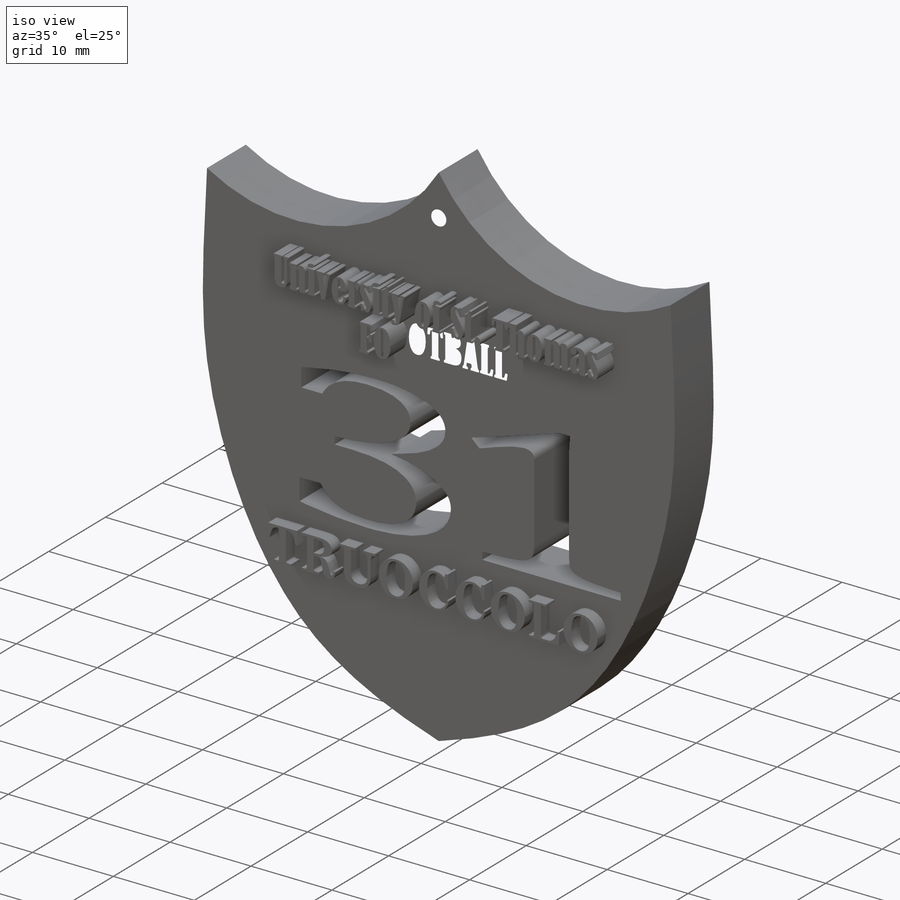
[diagram: iso view]
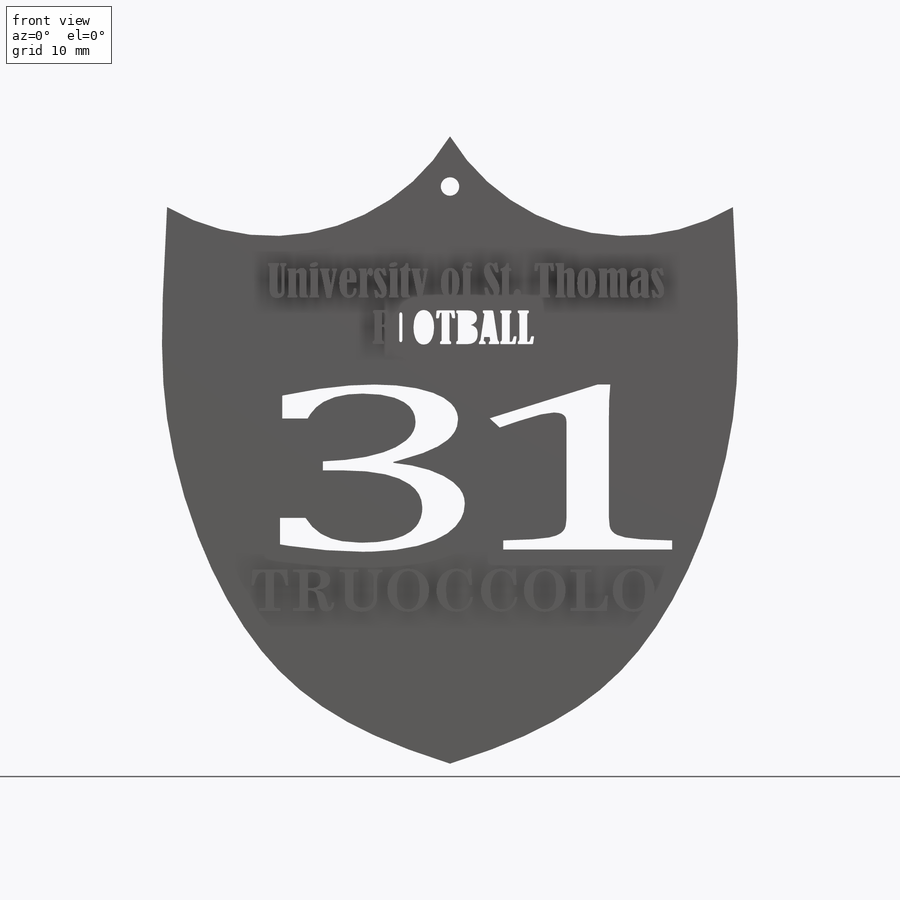
[diagram: front view]
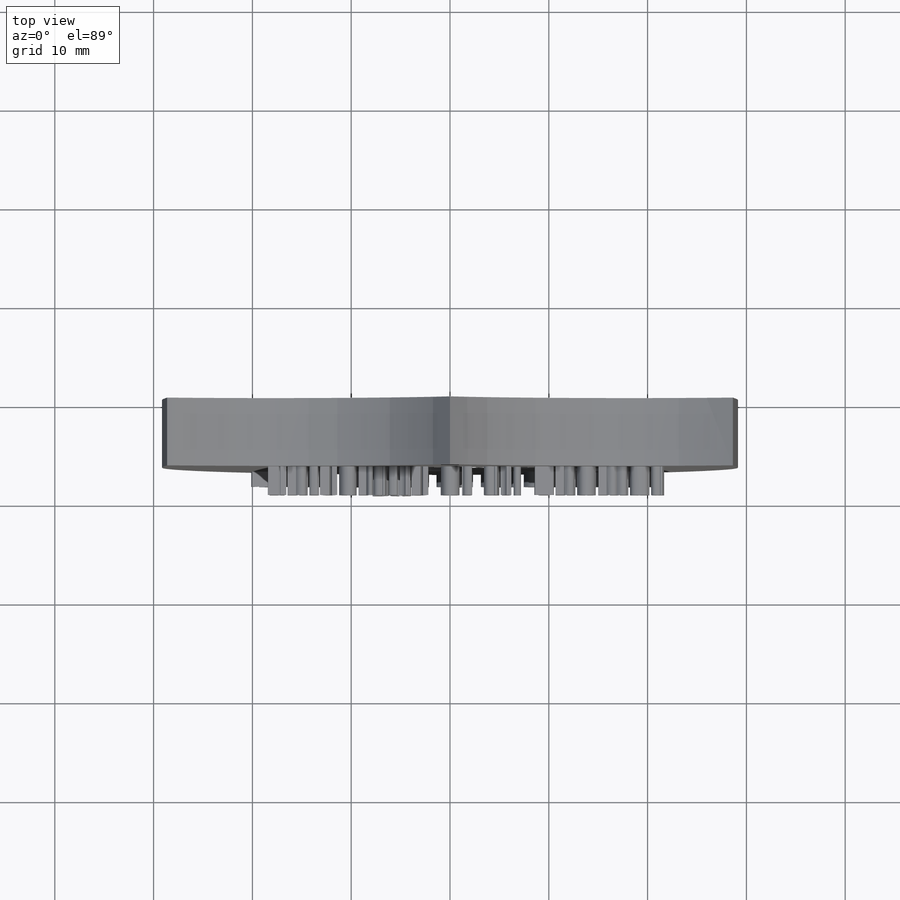
[diagram: top view]
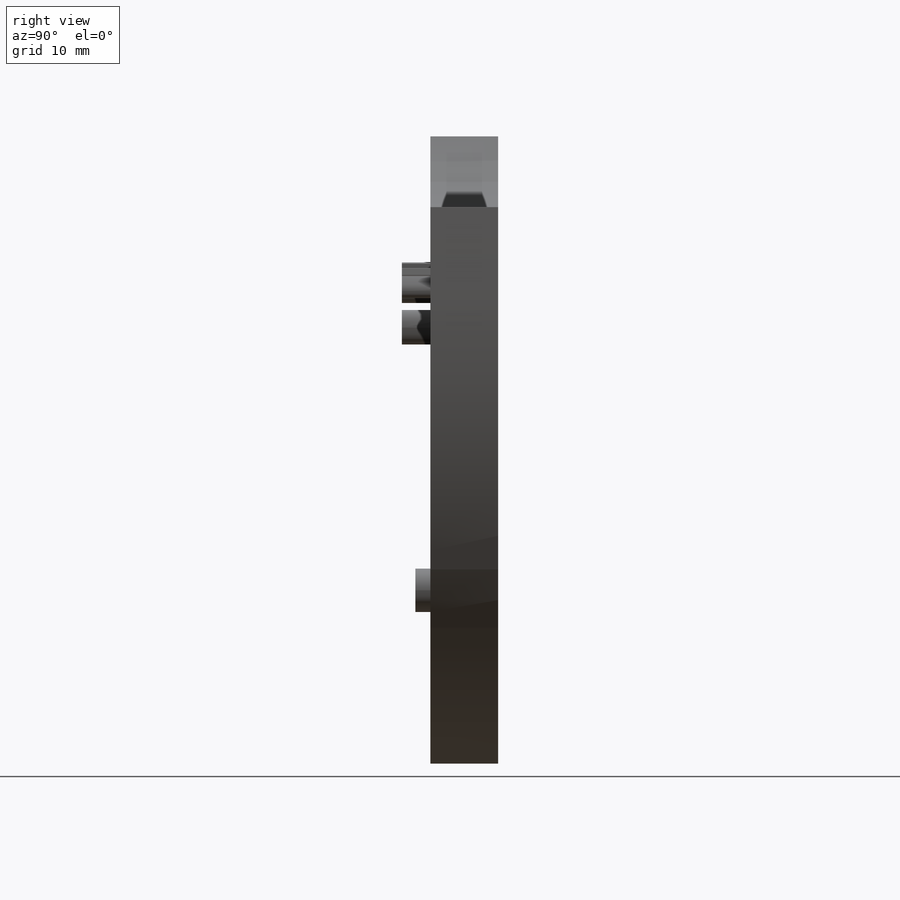
[diagram: right view]
SOLIDWORKS PART (.sldprt)
format: sldprt  version: not decoded by parser v0  size: 1,570,304 bytes
history: native  units: mm
features: sketch x6, extrude x4, cut_extrude x2, material x1 (+13 scaffold rows collapsed)
feature tree (26):
  scaffold x13  (default folders/planes/origin — collapsed)
  material  "Material <not specified>"
  sketch  "Sketch1"  dims[c1.D1=~21.016643mm c1.D5=~63.904292mm c1.D8=~69.686303mm c1.D9=~63.904292mm c1.D10=~32.216279mm c1.D11=~24.191903mm c1.D2=63.5mm c1.D3=~28.637779mm c1.D4=~20.598293mm c2.D5=~2.847599deg c2.D6=~64.327721mm c2.D7=~17.950612mm c2.D8=~64.327721mm c2.D9=~53.397267mm c3.D9=~177.152401deg c3.D5=~28.147238mm c4.D9=~34.172554mm c4.D10=~56.106927mm c4.D11=~80.403763mm c4.D12=~87.569821mm c5.D9=~34.172554mm c5.D12=~2.847599deg c5.D13=~107.516924deg]
  extrude  "Boss-Extrude1"  Depth=6.858mm
  sketch  "Sketch8"  dims[c1.D1=6.35mm c1.D2=~6.350347mm c2.D1=6.35mm c2.D2=57.15mm]
  extrude  "Boss-Extrude2"  Depth=1.524mm
  sketch  "Sketch9"
  cut_extrude  "Cut-Extrude1"  Depth=16.002mm
  sketch  "Sketch10"
  extrude  "Boss-Extrude3"  Depth=2.8956mm
  sketch  "Sketch11"
  extrude  "Boss-Extrude4"  Depth=2.8956mm
  sketch  "Sketch12"  dims[D2=~1.870145mm D1=5.08mm]
  cut_extrude  "Cut-Extrude2"  Depth=31.8516mm
decode coverage: 9 of 12 modeling features carry decoded parameters
note: ~ marks probable driven/reference dimensions
note: suppression state not decoded; provenance and decode notes live in map.json
